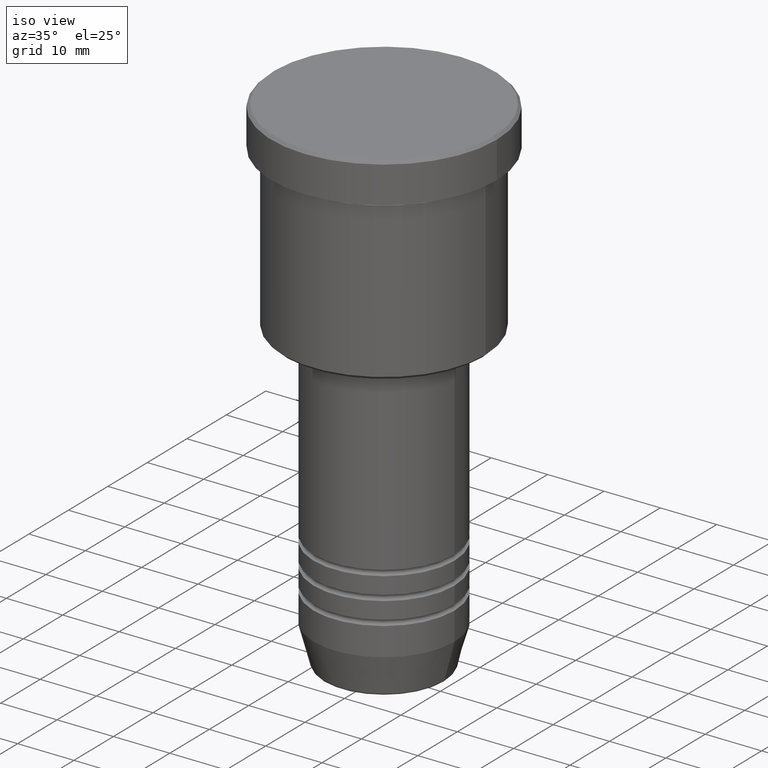
[diagram: clean part render]
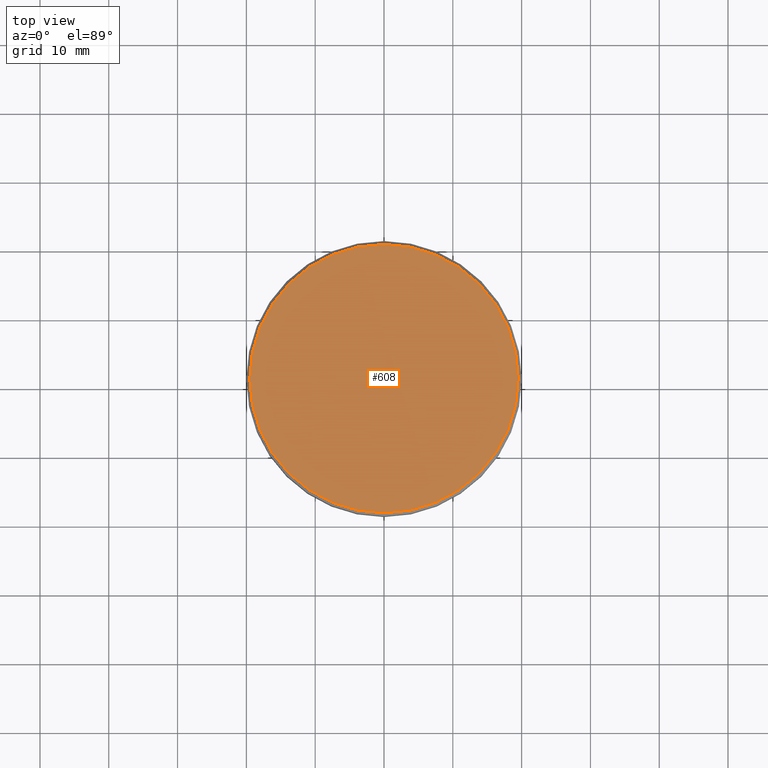
[diagram: tour spotlight — one face highlighted and labeled with its STEP entity id]
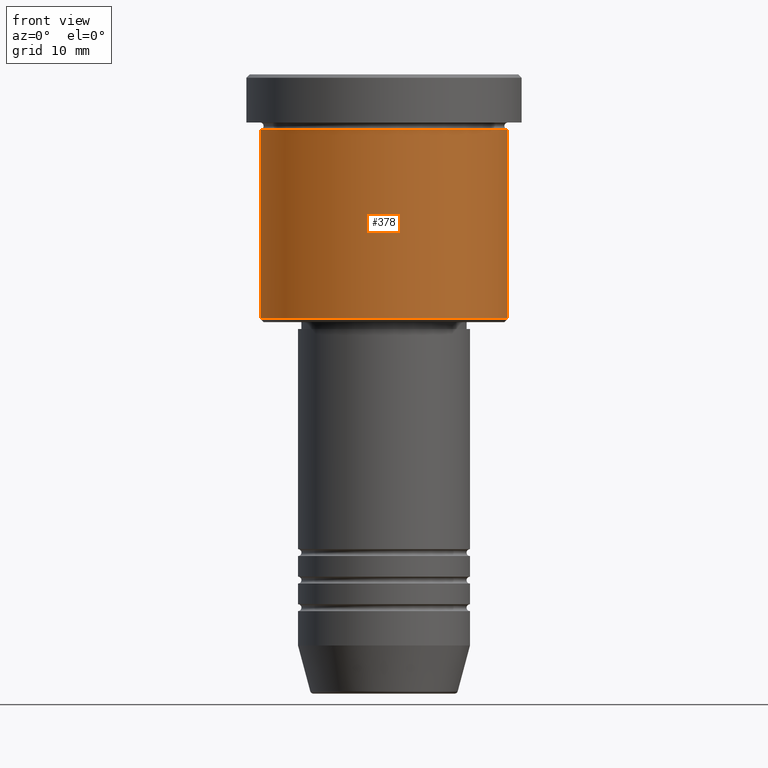
[diagram: tour spotlight — one face highlighted and labeled with its STEP entity id]
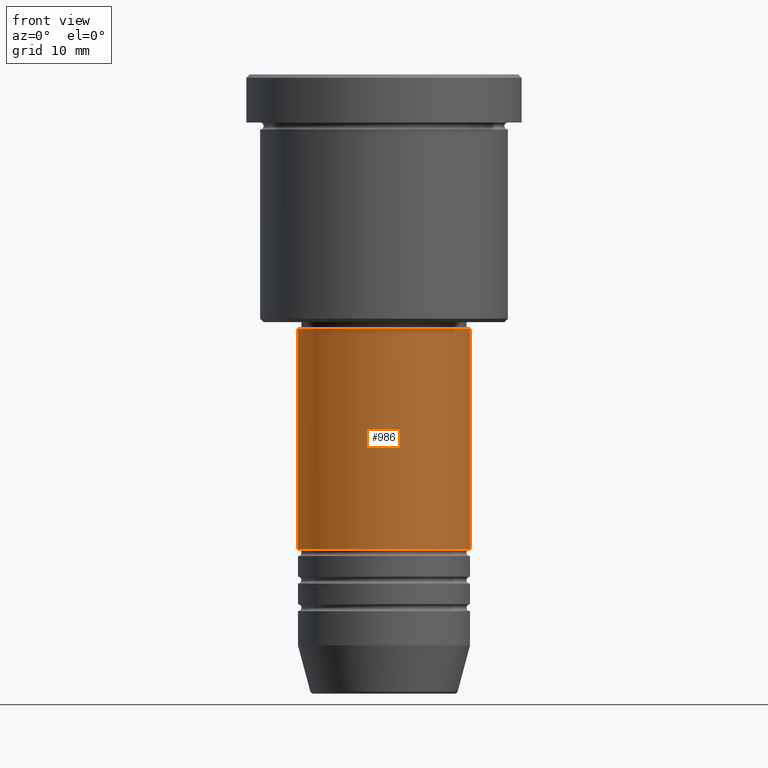
[diagram: tour spotlight — one face highlighted and labeled with its STEP entity id]
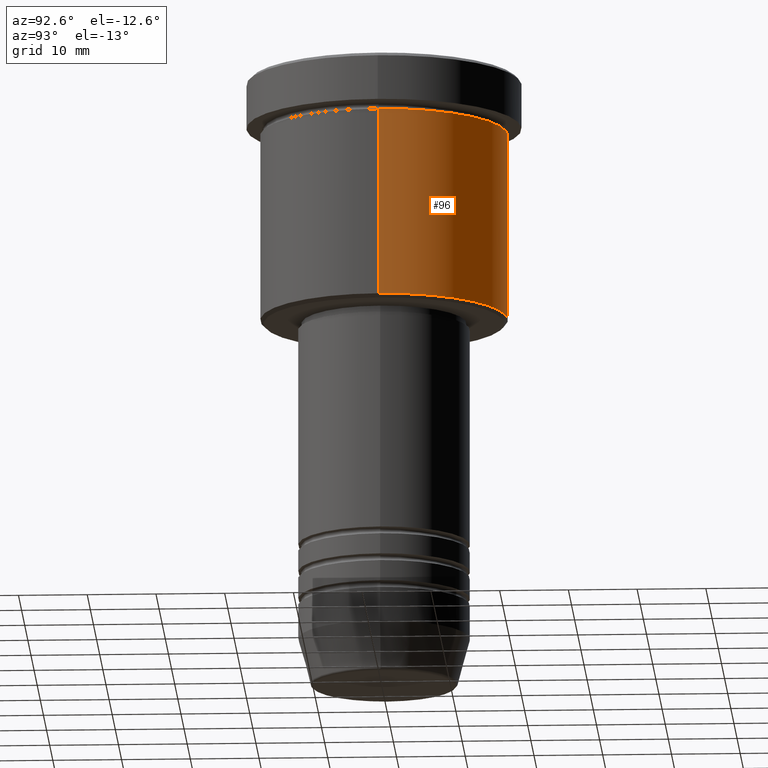
[diagram: tour spotlight — one face highlighted and labeled with its STEP entity id]
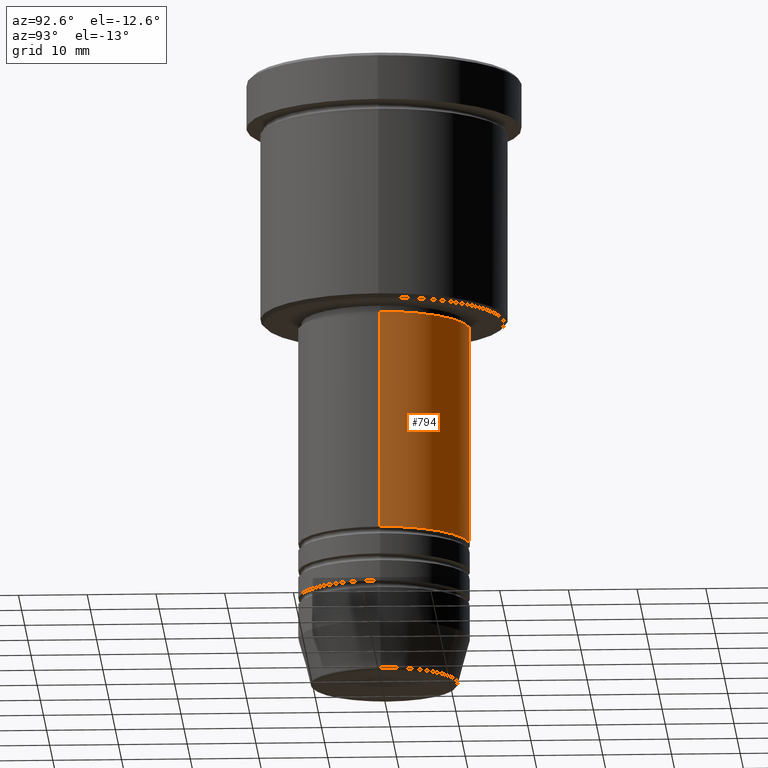
[diagram: tour spotlight — one face highlighted and labeled with its STEP entity id]
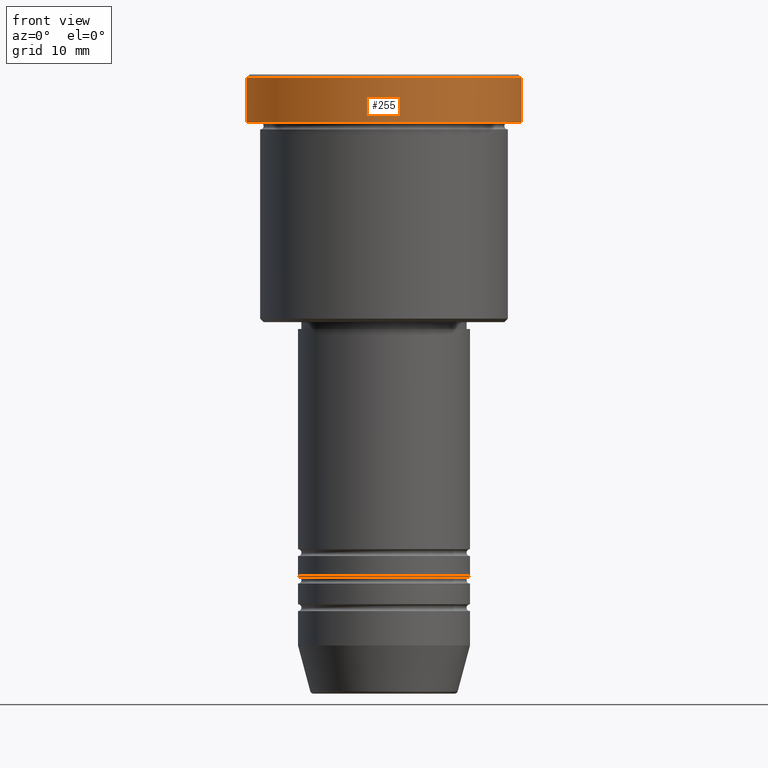
[diagram: tour spotlight — one face highlighted and labeled with its STEP entity id]
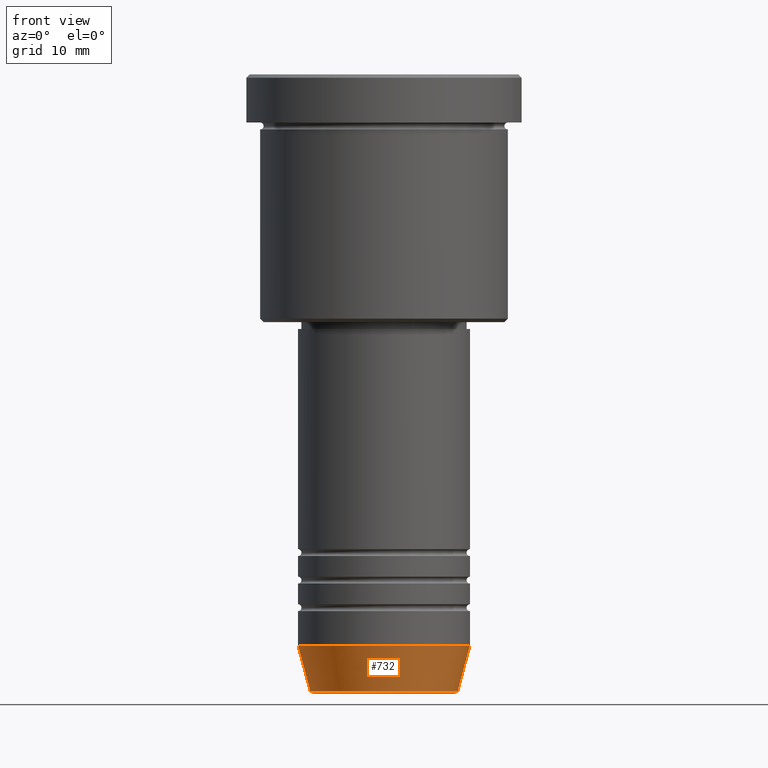
[diagram: tour spotlight — one face highlighted and labeled with its STEP entity id]
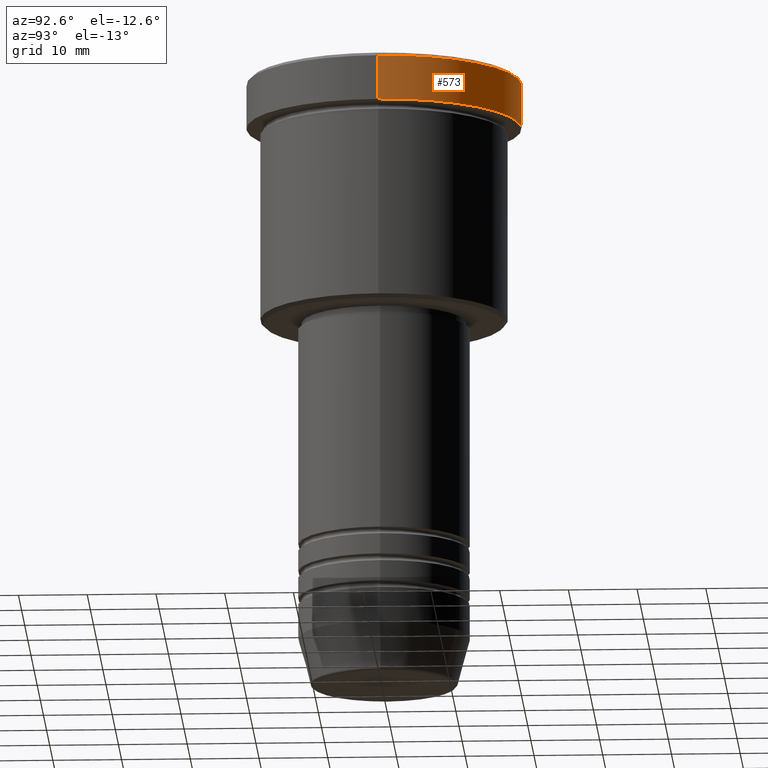
[diagram: tour spotlight — one face highlighted and labeled with its STEP entity id]
A machine part: a face-by-face anatomy tour. The part has 43 B-rep faces; the first image is the clean iso view, then the 8 largest visible faces are spotlighted one at a time (largest first), each with its STEP entity span.

Face 1 — top view, entity #608. In plain terms, the highlighted planar face has unit normal (0, -0, 1).
Definition (entity closure, byte-faithful):
#47 = CARTESIAN_POINT ( 'NONE',  ( 19.50000000000001776, 2.418677428316023515E-15, 0.000000000000000000 ) ) ;
#50 = DIRECTION ( 'NONE',  ( 0.000000000000000000, -0.000000000000000000, 1.000000000000000000 ) ) ;
#58 = CARTESIAN_POINT ( 'NONE',  ( 0.000000000000000000, 0.000000000000000000, 0.000000000000000000 ) ) ;
#82 = VERTEX_POINT ( 'NONE', #47 ) ;
#90 = AXIS2_PLACEMENT_3D ( 'NONE', #769, #305, #952 ) ;
#155 = EDGE_CURVE ( 'NONE', #82, #1159, #803, .T. ) ;
#238 = DIRECTION ( 'NONE',  ( 1.000000000000000000, 0.000000000000000000, 0.000000000000000000 ) ) ;
#305 = DIRECTION ( 'NONE',  ( -0.000000000000000000, -0.000000000000000000, 1.000000000000000000 ) ) ;
#306 = AXIS2_PLACEMENT_3D ( 'NONE', #452, #1090, #1108 ) ;
#309 = PLANE ( 'NONE',  #391 ) ;
#386 = CARTESIAN_POINT ( 'NONE',  ( -19.50000000000001776, 0.000000000000000000, 0.000000000000000000 ) ) ;
#391 = AXIS2_PLACEMENT_3D ( 'NONE', #58, #50, #238 ) ;
#445 = CIRCLE ( 'NONE', #306, 19.50000000000001776 ) ;
#452 = CARTESIAN_POINT ( 'NONE',  ( 0.000000000000000000, 0.000000000000000000, 0.000000000000000000 ) ) ;
#454 = EDGE_CURVE ( 'NONE', #1159, #82, #445, .T. ) ;
#608 = ADVANCED_FACE ( 'NONE', ( #1042 ), #309, .T. ) ;
#610 = ORIENTED_EDGE ( 'NONE', *, *, #454, .T. ) ;
#769 = CARTESIAN_POINT ( 'NONE',  ( 0.000000000000000000, 0.000000000000000000, 0.000000000000000000 ) ) ;
#803 = CIRCLE ( 'NONE', #90, 19.50000000000001776 ) ;
#844 = EDGE_LOOP ( 'NONE', ( #610, #906 ) ) ;
#906 = ORIENTED_EDGE ( 'NONE', *, *, #155, .T. ) ;
#952 = DIRECTION ( 'NONE',  ( 1.000000000000000000, 0.000000000000000000, 0.000000000000000000 ) ) ;
#1042 = FACE_OUTER_BOUND ( 'NONE', #844, .T. ) ;
#1090 = DIRECTION ( 'NONE',  ( -0.000000000000000000, -0.000000000000000000, 1.000000000000000000 ) ) ;
#1108 = DIRECTION ( 'NONE',  ( 1.000000000000000000, 0.000000000000000000, 0.000000000000000000 ) ) ;
#1159 = VERTEX_POINT ( 'NONE', #386 ) ;

Face 2 — front view, entity #378. In plain terms, the highlighted cylindrical surface (partial cylindrical patch) has radius 18 mm, axis along (-0, -0, 1).
Definition (entity closure, byte-faithful):
#4 = AXIS2_PLACEMENT_3D ( 'NONE', #938, #593, #575 ) ;
#25 = AXIS2_PLACEMENT_3D ( 'NONE', #156, #219, #472 ) ;
#114 = EDGE_LOOP ( 'NONE', ( #1164, #546, #632, #978 ) ) ;
#156 = CARTESIAN_POINT ( 'NONE',  ( 0.000000000000000000, 0.000000000000000000, -35.49999999999997158 ) ) ;
#171 = VECTOR ( 'NONE', #349, 1000.000000000000000 ) ;
#179 = LINE ( 'NONE', #605, #171 ) ;
#192 = VERTEX_POINT ( 'NONE', #379 ) ;
#219 = DIRECTION ( 'NONE',  ( -0.000000000000000000, -0.000000000000000000, 1.000000000000000000 ) ) ;
#279 = EDGE_CURVE ( 'NONE', #900, #649, #626, .T. ) ;
#349 = DIRECTION ( 'NONE',  ( -0.000000000000000000, -0.000000000000000000, 1.000000000000000000 ) ) ;
#378 = ADVANCED_FACE ( 'NONE', ( #815 ), #1181, .T. ) ;
#379 = CARTESIAN_POINT ( 'NONE',  ( -18.00000000000000000, 2.204364238465235428E-15, -35.49999999999997158 ) ) ;
#472 = DIRECTION ( 'NONE',  ( -1.000000000000000000, 0.000000000000000000, 0.000000000000000000 ) ) ;
#473 = CARTESIAN_POINT ( 'NONE',  ( -18.00000000000000000, 2.204364238465235428E-15, 0.000000000000000000 ) ) ;
#487 = EDGE_CURVE ( 'NONE', #192, #880, #744, .T. ) ;
#497 = CARTESIAN_POINT ( 'NONE',  ( 18.00000000000000000, 0.000000000000000000, -7.999999999999996447 ) ) ;
#500 = LINE ( 'NONE', #473, #942 ) ;
#546 = ORIENTED_EDGE ( 'NONE', *, *, #487, .T. ) ;
#552 = DIRECTION ( 'NONE',  ( 1.000000000000000000, 0.000000000000000000, 0.000000000000000000 ) ) ;
#575 = DIRECTION ( 'NONE',  ( 1.000000000000000000, 0.000000000000000000, 0.000000000000000000 ) ) ;
#593 = DIRECTION ( 'NONE',  ( -0.000000000000000000, -0.000000000000000000, 1.000000000000000000 ) ) ;
#601 = CARTESIAN_POINT ( 'NONE',  ( 18.00000000000000000, 0.000000000000000000, -35.49999999999997158 ) ) ;
#605 = CARTESIAN_POINT ( 'NONE',  ( 18.00000000000000000, 0.000000000000000000, 0.000000000000000000 ) ) ;
#626 = CIRCLE ( 'NONE', #4, 18.00000000000000000 ) ;
#632 = ORIENTED_EDGE ( 'NONE', *, *, #768, .T. ) ;
#649 = VERTEX_POINT ( 'NONE', #497 ) ;
#744 = CIRCLE ( 'NONE', #25, 18.00000000000000000 ) ;
#768 = EDGE_CURVE ( 'NONE', #880, #649, #179, .T. ) ;
#815 = FACE_OUTER_BOUND ( 'NONE', #114, .T. ) ;
#880 = VERTEX_POINT ( 'NONE', #601 ) ;
#900 = VERTEX_POINT ( 'NONE', #919 ) ;
#919 = CARTESIAN_POINT ( 'NONE',  ( -18.00000000000000000, 2.204364238465235428E-15, -7.999999999999996447 ) ) ;
#938 = CARTESIAN_POINT ( 'NONE',  ( 0.000000000000000000, 0.000000000000000000, -7.999999999999996447 ) ) ;
#942 = VECTOR ( 'NONE', #1018, 1000.000000000000000 ) ;
#978 = ORIENTED_EDGE ( 'NONE', *, *, #279, .F. ) ;
#998 = AXIS2_PLACEMENT_3D ( 'NONE', #1021, #1010, #552 ) ;
#1010 = DIRECTION ( 'NONE',  ( -0.000000000000000000, -0.000000000000000000, 1.000000000000000000 ) ) ;
#1018 = DIRECTION ( 'NONE',  ( -0.000000000000000000, -0.000000000000000000, 1.000000000000000000 ) ) ;
#1021 = CARTESIAN_POINT ( 'NONE',  ( 0.000000000000000000, 0.000000000000000000, 0.000000000000000000 ) ) ;
#1046 = EDGE_CURVE ( 'NONE', #192, #900, #500, .T. ) ;
#1164 = ORIENTED_EDGE ( 'NONE', *, *, #1046, .F. ) ;
#1181 = CYLINDRICAL_SURFACE ( 'NONE', #998, 18.00000000000000000 ) ;

Face 3 — front view, entity #986. In plain terms, the highlighted cylindrical surface (partial cylindrical patch) has radius 12.5 mm, axis along (-0, -0, 1).
Definition (entity closure, byte-faithful):
#1 = AXIS2_PLACEMENT_3D ( 'NONE', #291, #469, #635 ) ;
#5 = EDGE_LOOP ( 'NONE', ( #957, #175, #910, #1126 ) ) ;
#11 = LINE ( 'NONE', #382, #842 ) ;
#125 = AXIS2_PLACEMENT_3D ( 'NONE', #693, #1064, #894 ) ;
#130 = CARTESIAN_POINT ( 'NONE',  ( -12.50000000000000000, 1.530808498934191521E-15, -68.99999999999997158 ) ) ;
#142 = CARTESIAN_POINT ( 'NONE',  ( -12.50000000000000000, 1.530808498934191521E-15, 0.000000000000000000 ) ) ;
#175 = ORIENTED_EDGE ( 'NONE', *, *, #860, .T. ) ;
#183 = DIRECTION ( 'NONE',  ( 1.000000000000000000, 0.000000000000000000, 0.000000000000000000 ) ) ;
#228 = CARTESIAN_POINT ( 'NONE',  ( 12.50000000000000000, 0.000000000000000000, -37.00000000000000711 ) ) ;
#291 = CARTESIAN_POINT ( 'NONE',  ( 0.000000000000000000, 0.000000000000000000, -37.00000000000000711 ) ) ;
#307 = DIRECTION ( 'NONE',  ( -0.000000000000000000, -0.000000000000000000, 1.000000000000000000 ) ) ;
#338 = CARTESIAN_POINT ( 'NONE',  ( -12.50000000000000000, 1.530808498934191521E-15, -37.00000000000000711 ) ) ;
#360 = CARTESIAN_POINT ( 'NONE',  ( 0.000000000000000000, 0.000000000000000000, 0.000000000000000000 ) ) ;
#363 = DIRECTION ( 'NONE',  ( -0.000000000000000000, -0.000000000000000000, 1.000000000000000000 ) ) ;
#382 = CARTESIAN_POINT ( 'NONE',  ( 12.50000000000000000, 0.000000000000000000, 0.000000000000000000 ) ) ;
#461 = FACE_OUTER_BOUND ( 'NONE', #5, .T. ) ;
#469 = DIRECTION ( 'NONE',  ( -0.000000000000000000, -0.000000000000000000, 1.000000000000000000 ) ) ;
#528 = VERTEX_POINT ( 'NONE', #338 ) ;
#635 = DIRECTION ( 'NONE',  ( 1.000000000000000000, 0.000000000000000000, 0.000000000000000000 ) ) ;
#639 = DIRECTION ( 'NONE',  ( -0.000000000000000000, -0.000000000000000000, 1.000000000000000000 ) ) ;
#675 = LINE ( 'NONE', #142, #861 ) ;
#693 = CARTESIAN_POINT ( 'NONE',  ( 0.000000000000000000, 0.000000000000000000, -68.99999999999997158 ) ) ;
#835 = CARTESIAN_POINT ( 'NONE',  ( 12.50000000000000000, 0.000000000000000000, -68.99999999999997158 ) ) ;
#842 = VECTOR ( 'NONE', #639, 1000.000000000000000 ) ;
#860 = EDGE_CURVE ( 'NONE', #1169, #1177, #996, .T. ) ;
#861 = VECTOR ( 'NONE', #307, 1000.000000000000000 ) ;
#883 = CIRCLE ( 'NONE', #1, 12.50000000000000000 ) ;
#888 = AXIS2_PLACEMENT_3D ( 'NONE', #360, #363, #183 ) ;
#894 = DIRECTION ( 'NONE',  ( 1.000000000000000000, 0.000000000000000000, 0.000000000000000000 ) ) ;
#909 = EDGE_CURVE ( 'NONE', #528, #1158, #883, .T. ) ;
#910 = ORIENTED_EDGE ( 'NONE', *, *, #923, .T. ) ;
#923 = EDGE_CURVE ( 'NONE', #1177, #1158, #11, .T. ) ;
#957 = ORIENTED_EDGE ( 'NONE', *, *, #1132, .F. ) ;
#986 = ADVANCED_FACE ( 'NONE', ( #461 ), #1175, .T. ) ;
#996 = CIRCLE ( 'NONE', #125, 12.50000000000000000 ) ;
#1064 = DIRECTION ( 'NONE',  ( -0.000000000000000000, -0.000000000000000000, 1.000000000000000000 ) ) ;
#1126 = ORIENTED_EDGE ( 'NONE', *, *, #909, .F. ) ;
#1132 = EDGE_CURVE ( 'NONE', #1169, #528, #675, .T. ) ;
#1158 = VERTEX_POINT ( 'NONE', #228 ) ;
#1169 = VERTEX_POINT ( 'NONE', #130 ) ;
#1175 = CYLINDRICAL_SURFACE ( 'NONE', #888, 12.50000000000000000 ) ;
#1177 = VERTEX_POINT ( 'NONE', #835 ) ;

Face 4 — auxiliary view, entity #96. In plain terms, the highlighted cylindrical surface (partial cylindrical patch) has radius 18 mm, axis along (-0, -0, 1).
Definition (entity closure, byte-faithful):
#96 = ADVANCED_FACE ( 'NONE', ( #1127 ), #936, .T. ) ;
#123 = EDGE_CURVE ( 'NONE', #649, #900, #1074, .T. ) ;
#126 = CARTESIAN_POINT ( 'NONE',  ( 0.000000000000000000, 0.000000000000000000, 0.000000000000000000 ) ) ;
#171 = VECTOR ( 'NONE', #349, 1000.000000000000000 ) ;
#179 = LINE ( 'NONE', #605, #171 ) ;
#192 = VERTEX_POINT ( 'NONE', #379 ) ;
#312 = EDGE_CURVE ( 'NONE', #880, #192, #413, .T. ) ;
#347 = CARTESIAN_POINT ( 'NONE',  ( 0.000000000000000000, 0.000000000000000000, -35.49999999999997158 ) ) ;
#349 = DIRECTION ( 'NONE',  ( -0.000000000000000000, -0.000000000000000000, 1.000000000000000000 ) ) ;
#379 = CARTESIAN_POINT ( 'NONE',  ( -18.00000000000000000, 2.204364238465235428E-15, -35.49999999999997158 ) ) ;
#392 = DIRECTION ( 'NONE',  ( 1.000000000000000000, 0.000000000000000000, 0.000000000000000000 ) ) ;
#404 = DIRECTION ( 'NONE',  ( -0.000000000000000000, -0.000000000000000000, 1.000000000000000000 ) ) ;
#413 = CIRCLE ( 'NONE', #443, 18.00000000000000000 ) ;
#443 = AXIS2_PLACEMENT_3D ( 'NONE', #347, #620, #728 ) ;
#458 = ORIENTED_EDGE ( 'NONE', *, *, #123, .F. ) ;
#473 = CARTESIAN_POINT ( 'NONE',  ( -18.00000000000000000, 2.204364238465235428E-15, 0.000000000000000000 ) ) ;
#497 = CARTESIAN_POINT ( 'NONE',  ( 18.00000000000000000, 0.000000000000000000, -7.999999999999996447 ) ) ;
#500 = LINE ( 'NONE', #473, #942 ) ;
#505 = DIRECTION ( 'NONE',  ( -0.000000000000000000, -0.000000000000000000, 1.000000000000000000 ) ) ;
#506 = AXIS2_PLACEMENT_3D ( 'NONE', #126, #505, #392 ) ;
#550 = AXIS2_PLACEMENT_3D ( 'NONE', #668, #404, #1039 ) ;
#601 = CARTESIAN_POINT ( 'NONE',  ( 18.00000000000000000, 0.000000000000000000, -35.49999999999997158 ) ) ;
#605 = CARTESIAN_POINT ( 'NONE',  ( 18.00000000000000000, 0.000000000000000000, 0.000000000000000000 ) ) ;
#620 = DIRECTION ( 'NONE',  ( -0.000000000000000000, -0.000000000000000000, 1.000000000000000000 ) ) ;
#649 = VERTEX_POINT ( 'NONE', #497 ) ;
#668 = CARTESIAN_POINT ( 'NONE',  ( 0.000000000000000000, 0.000000000000000000, -7.999999999999996447 ) ) ;
#728 = DIRECTION ( 'NONE',  ( -1.000000000000000000, 0.000000000000000000, 0.000000000000000000 ) ) ;
#768 = EDGE_CURVE ( 'NONE', #880, #649, #179, .T. ) ;
#790 = ORIENTED_EDGE ( 'NONE', *, *, #312, .T. ) ;
#808 = ORIENTED_EDGE ( 'NONE', *, *, #1046, .T. ) ;
#880 = VERTEX_POINT ( 'NONE', #601 ) ;
#900 = VERTEX_POINT ( 'NONE', #919 ) ;
#919 = CARTESIAN_POINT ( 'NONE',  ( -18.00000000000000000, 2.204364238465235428E-15, -7.999999999999996447 ) ) ;
#936 = CYLINDRICAL_SURFACE ( 'NONE', #506, 18.00000000000000000 ) ;
#942 = VECTOR ( 'NONE', #1018, 1000.000000000000000 ) ;
#966 = ORIENTED_EDGE ( 'NONE', *, *, #768, .F. ) ;
#1018 = DIRECTION ( 'NONE',  ( -0.000000000000000000, -0.000000000000000000, 1.000000000000000000 ) ) ;
#1035 = EDGE_LOOP ( 'NONE', ( #790, #808, #458, #966 ) ) ;
#1039 = DIRECTION ( 'NONE',  ( 1.000000000000000000, 0.000000000000000000, 0.000000000000000000 ) ) ;
#1046 = EDGE_CURVE ( 'NONE', #192, #900, #500, .T. ) ;
#1074 = CIRCLE ( 'NONE', #550, 18.00000000000000000 ) ;
#1127 = FACE_OUTER_BOUND ( 'NONE', #1035, .T. ) ;

Face 5 — auxiliary view, entity #794. In plain terms, the highlighted cylindrical surface (partial cylindrical patch) has radius 12.5 mm, axis along (-0, -0, 1).
Definition (entity closure, byte-faithful):
#11 = LINE ( 'NONE', #382, #842 ) ;
#21 = AXIS2_PLACEMENT_3D ( 'NONE', #438, #1151, #262 ) ;
#36 = DIRECTION ( 'NONE',  ( 1.000000000000000000, 0.000000000000000000, 0.000000000000000000 ) ) ;
#112 = DIRECTION ( 'NONE',  ( -0.000000000000000000, -0.000000000000000000, 1.000000000000000000 ) ) ;
#124 = ORIENTED_EDGE ( 'NONE', *, *, #923, .F. ) ;
#130 = CARTESIAN_POINT ( 'NONE',  ( -12.50000000000000000, 1.530808498934191521E-15, -68.99999999999997158 ) ) ;
#142 = CARTESIAN_POINT ( 'NONE',  ( -12.50000000000000000, 1.530808498934191521E-15, 0.000000000000000000 ) ) ;
#154 = CARTESIAN_POINT ( 'NONE',  ( 0.000000000000000000, 0.000000000000000000, -37.00000000000000711 ) ) ;
#185 = ORIENTED_EDGE ( 'NONE', *, *, #237, .T. ) ;
#228 = CARTESIAN_POINT ( 'NONE',  ( 12.50000000000000000, 0.000000000000000000, -37.00000000000000711 ) ) ;
#237 = EDGE_CURVE ( 'NONE', #1177, #1169, #705, .T. ) ;
#262 = DIRECTION ( 'NONE',  ( 1.000000000000000000, 0.000000000000000000, 0.000000000000000000 ) ) ;
#265 = AXIS2_PLACEMENT_3D ( 'NONE', #555, #112, #655 ) ;
#304 = ORIENTED_EDGE ( 'NONE', *, *, #543, .F. ) ;
#307 = DIRECTION ( 'NONE',  ( -0.000000000000000000, -0.000000000000000000, 1.000000000000000000 ) ) ;
#338 = CARTESIAN_POINT ( 'NONE',  ( -12.50000000000000000, 1.530808498934191521E-15, -37.00000000000000711 ) ) ;
#382 = CARTESIAN_POINT ( 'NONE',  ( 12.50000000000000000, 0.000000000000000000, 0.000000000000000000 ) ) ;
#435 = CYLINDRICAL_SURFACE ( 'NONE', #21, 12.50000000000000000 ) ;
#438 = CARTESIAN_POINT ( 'NONE',  ( 0.000000000000000000, 0.000000000000000000, 0.000000000000000000 ) ) ;
#520 = ORIENTED_EDGE ( 'NONE', *, *, #1132, .T. ) ;
#528 = VERTEX_POINT ( 'NONE', #338 ) ;
#543 = EDGE_CURVE ( 'NONE', #1158, #528, #905, .T. ) ;
#555 = CARTESIAN_POINT ( 'NONE',  ( 0.000000000000000000, 0.000000000000000000, -68.99999999999997158 ) ) ;
#563 = DIRECTION ( 'NONE',  ( -0.000000000000000000, -0.000000000000000000, 1.000000000000000000 ) ) ;
#618 = FACE_OUTER_BOUND ( 'NONE', #1058, .T. ) ;
#639 = DIRECTION ( 'NONE',  ( -0.000000000000000000, -0.000000000000000000, 1.000000000000000000 ) ) ;
#655 = DIRECTION ( 'NONE',  ( 1.000000000000000000, 0.000000000000000000, 0.000000000000000000 ) ) ;
#675 = LINE ( 'NONE', #142, #861 ) ;
#705 = CIRCLE ( 'NONE', #265, 12.50000000000000000 ) ;
#794 = ADVANCED_FACE ( 'NONE', ( #618 ), #435, .T. ) ;
#835 = CARTESIAN_POINT ( 'NONE',  ( 12.50000000000000000, 0.000000000000000000, -68.99999999999997158 ) ) ;
#842 = VECTOR ( 'NONE', #639, 1000.000000000000000 ) ;
#861 = VECTOR ( 'NONE', #307, 1000.000000000000000 ) ;
#903 = AXIS2_PLACEMENT_3D ( 'NONE', #154, #563, #36 ) ;
#905 = CIRCLE ( 'NONE', #903, 12.50000000000000000 ) ;
#923 = EDGE_CURVE ( 'NONE', #1177, #1158, #11, .T. ) ;
#1058 = EDGE_LOOP ( 'NONE', ( #185, #520, #304, #124 ) ) ;
#1132 = EDGE_CURVE ( 'NONE', #1169, #528, #675, .T. ) ;
#1151 = DIRECTION ( 'NONE',  ( -0.000000000000000000, -0.000000000000000000, 1.000000000000000000 ) ) ;
#1158 = VERTEX_POINT ( 'NONE', #228 ) ;
#1169 = VERTEX_POINT ( 'NONE', #130 ) ;
#1177 = VERTEX_POINT ( 'NONE', #835 ) ;

Face 6 — front view, entity #255. In plain terms, the highlighted cylindrical surface (partial cylindrical patch) has radius 20 mm, axis along (-0, -0, 1).
Definition (entity closure, byte-faithful):
#24 = CARTESIAN_POINT ( 'NONE',  ( 0.000000000000000000, 0.000000000000000000, 0.000000000000000000 ) ) ;
#39 = DIRECTION ( 'NONE',  ( 1.000000000000000000, 0.000000000000000000, 0.000000000000000000 ) ) ;
#113 = EDGE_CURVE ( 'NONE', #660, #884, #242, .T. ) ;
#117 = CARTESIAN_POINT ( 'NONE',  ( -20.00000000000000000, 2.449293598294706513E-15, 0.000000000000000000 ) ) ;
#131 = DIRECTION ( 'NONE',  ( 1.000000000000000000, 0.000000000000000000, 0.000000000000000000 ) ) ;
#153 = AXIS2_PLACEMENT_3D ( 'NONE', #931, #850, #39 ) ;
#218 = CARTESIAN_POINT ( 'NONE',  ( 0.000000000000000000, 0.000000000000000000, -0.4999999999999831246 ) ) ;
#242 = CIRCLE ( 'NONE', #153, 20.00000000000000000 ) ;
#255 = ADVANCED_FACE ( 'NONE', ( #738 ), #1116, .T. ) ;
#387 = VERTEX_POINT ( 'NONE', #929 ) ;
#395 = LINE ( 'NONE', #858, #549 ) ;
#401 = VERTEX_POINT ( 'NONE', #659 ) ;
#427 = VECTOR ( 'NONE', #1128, 1000.000000000000000 ) ;
#549 = VECTOR ( 'NONE', #1040, 1000.000000000000000 ) ;
#560 = DIRECTION ( 'NONE',  ( -0.000000000000000000, -0.000000000000000000, 1.000000000000000000 ) ) ;
#588 = ORIENTED_EDGE ( 'NONE', *, *, #1082, .F. ) ;
#627 = AXIS2_PLACEMENT_3D ( 'NONE', #218, #849, #859 ) ;
#659 = CARTESIAN_POINT ( 'NONE',  ( -20.00000000000000000, 2.449293598294706513E-15, -0.4999999999999831246 ) ) ;
#660 = VERTEX_POINT ( 'NONE', #955 ) ;
#665 = EDGE_CURVE ( 'NONE', #387, #401, #1156, .T. ) ;
#723 = AXIS2_PLACEMENT_3D ( 'NONE', #24, #560, #131 ) ;
#729 = ORIENTED_EDGE ( 'NONE', *, *, #113, .T. ) ;
#738 = FACE_OUTER_BOUND ( 'NONE', #810, .T. ) ;
#752 = LINE ( 'NONE', #117, #427 ) ;
#778 = ORIENTED_EDGE ( 'NONE', *, *, #665, .T. ) ;
#810 = EDGE_LOOP ( 'NONE', ( #588, #729, #1009, #778 ) ) ;
#849 = DIRECTION ( 'NONE',  ( 0.000000000000000000, 0.000000000000000000, -1.000000000000000000 ) ) ;
#850 = DIRECTION ( 'NONE',  ( -0.000000000000000000, -0.000000000000000000, 1.000000000000000000 ) ) ;
#858 = CARTESIAN_POINT ( 'NONE',  ( 20.00000000000000000, 0.000000000000000000, 0.000000000000000000 ) ) ;
#859 = DIRECTION ( 'NONE',  ( 1.000000000000000000, 0.000000000000000000, 0.000000000000000000 ) ) ;
#884 = VERTEX_POINT ( 'NONE', #1107 ) ;
#929 = CARTESIAN_POINT ( 'NONE',  ( 20.00000000000000000, 0.000000000000000000, -0.4999999999999831246 ) ) ;
#931 = CARTESIAN_POINT ( 'NONE',  ( 0.000000000000000000, 0.000000000000000000, -6.999999999999995559 ) ) ;
#955 = CARTESIAN_POINT ( 'NONE',  ( -20.00000000000000000, 2.449293598294706513E-15, -6.999999999999995559 ) ) ;
#1009 = ORIENTED_EDGE ( 'NONE', *, *, #1075, .T. ) ;
#1040 = DIRECTION ( 'NONE',  ( -0.000000000000000000, -0.000000000000000000, 1.000000000000000000 ) ) ;
#1075 = EDGE_CURVE ( 'NONE', #884, #387, #395, .T. ) ;
#1082 = EDGE_CURVE ( 'NONE', #660, #401, #752, .T. ) ;
#1107 = CARTESIAN_POINT ( 'NONE',  ( 20.00000000000000000, 0.000000000000000000, -6.999999999999995559 ) ) ;
#1116 = CYLINDRICAL_SURFACE ( 'NONE', #723, 20.00000000000000000 ) ;
#1128 = DIRECTION ( 'NONE',  ( -0.000000000000000000, -0.000000000000000000, 1.000000000000000000 ) ) ;
#1156 = CIRCLE ( 'NONE', #627, 20.00000000000000000 ) ;

Face 7 — front view, entity #732. In plain terms, the highlighted conical surface has half-angle 15 deg.
Definition (entity closure, byte-faithful):
#10 = CARTESIAN_POINT ( 'NONE',  ( -10.72365507213718416, 1.422038742429749727E-15, -89.62940952255125637 ) ) ;
#48 = CARTESIAN_POINT ( 'NONE',  ( 0.000000000000000000, 0.000000000000000000, -82.99999999999998579 ) ) ;
#51 = CIRCLE ( 'NONE', #204, 10.72365507213718416 ) ;
#56 = CARTESIAN_POINT ( 'NONE',  ( 12.50000000000000000, 0.000000000000000000, -82.99999999999998579 ) ) ;
#62 = DIRECTION ( 'NONE',  ( -0.000000000000000000, -0.000000000000000000, 1.000000000000000000 ) ) ;
#80 = FACE_OUTER_BOUND ( 'NONE', #380, .T. ) ;
#93 = ORIENTED_EDGE ( 'NONE', *, *, #1006, .F. ) ;
#111 = CARTESIAN_POINT ( 'NONE',  ( 12.50000000000000000, 0.000000000000000000, -82.99999999999998579 ) ) ;
#138 = EDGE_CURVE ( 'NONE', #989, #973, #1139, .T. ) ;
#166 = CARTESIAN_POINT ( 'NONE',  ( 0.000000000000000000, 0.000000000000000000, -82.99999999999998579 ) ) ;
#186 = AXIS2_PLACEMENT_3D ( 'NONE', #166, #793, #1162 ) ;
#202 = AXIS2_PLACEMENT_3D ( 'NONE', #48, #1124, #854 ) ;
#204 = AXIS2_PLACEMENT_3D ( 'NONE', #512, #62, #774 ) ;
#205 = ORIENTED_EDGE ( 'NONE', *, *, #293, .T. ) ;
#274 = CARTESIAN_POINT ( 'NONE',  ( 10.72365507213718416, 0.000000000000000000, -89.62940952255125637 ) ) ;
#293 = EDGE_CURVE ( 'NONE', #361, #989, #51, .T. ) ;
#361 = VERTEX_POINT ( 'NONE', #10 ) ;
#376 = VECTOR ( 'NONE', #809, 1000.000000000000000 ) ;
#380 = EDGE_LOOP ( 'NONE', ( #93, #205, #1057, #863 ) ) ;
#394 = CONICAL_SURFACE ( 'NONE', #186, 12.50000000000000000, 0.2617993877991500740 ) ;
#449 = CARTESIAN_POINT ( 'NONE',  ( -12.50000000000000000, 1.530808498934191521E-15, -82.99999999999998579 ) ) ;
#489 = DIRECTION ( 'NONE',  ( 0.2588190451025213501, 0.000000000000000000, 0.9659258262890680902 ) ) ;
#512 = CARTESIAN_POINT ( 'NONE',  ( 0.000000000000000000, 0.000000000000000000, -89.62940952255125637 ) ) ;
#600 = VERTEX_POINT ( 'NONE', #757 ) ;
#732 = ADVANCED_FACE ( 'NONE', ( #80 ), #394, .T. ) ;
#757 = CARTESIAN_POINT ( 'NONE',  ( -12.50000000000000000, 1.530808498934191521E-15, -82.99999999999998579 ) ) ;
#774 = DIRECTION ( 'NONE',  ( 1.000000000000000000, 0.000000000000000000, 0.000000000000000000 ) ) ;
#793 = DIRECTION ( 'NONE',  ( -0.000000000000000000, -0.000000000000000000, 1.000000000000000000 ) ) ;
#809 = DIRECTION ( 'NONE',  ( -0.2588190451025213501, 3.169619151431772337E-17, 0.9659258262890680902 ) ) ;
#854 = DIRECTION ( 'NONE',  ( 1.000000000000000000, 0.000000000000000000, 0.000000000000000000 ) ) ;
#863 = ORIENTED_EDGE ( 'NONE', *, *, #1100, .F. ) ;
#973 = VERTEX_POINT ( 'NONE', #111 ) ;
#989 = VERTEX_POINT ( 'NONE', #274 ) ;
#993 = LINE ( 'NONE', #449, #376 ) ;
#1006 = EDGE_CURVE ( 'NONE', #361, #600, #993, .T. ) ;
#1057 = ORIENTED_EDGE ( 'NONE', *, *, #138, .T. ) ;
#1073 = CIRCLE ( 'NONE', #202, 12.50000000000000000 ) ;
#1100 = EDGE_CURVE ( 'NONE', #600, #973, #1073, .T. ) ;
#1124 = DIRECTION ( 'NONE',  ( -0.000000000000000000, -0.000000000000000000, 1.000000000000000000 ) ) ;
#1139 = LINE ( 'NONE', #56, #1173 ) ;
#1162 = DIRECTION ( 'NONE',  ( 1.000000000000000000, 0.000000000000000000, 0.000000000000000000 ) ) ;
#1173 = VECTOR ( 'NONE', #489, 1000.000000000000000 ) ;

Face 8 — auxiliary view, entity #573. In plain terms, the highlighted cylindrical surface (partial cylindrical patch) has radius 20 mm, axis along (-0, -0, 1).
Definition (entity closure, byte-faithful):
#49 = FACE_OUTER_BOUND ( 'NONE', #949, .T. ) ;
#87 = AXIS2_PLACEMENT_3D ( 'NONE', #653, #129, #151 ) ;
#117 = CARTESIAN_POINT ( 'NONE',  ( -20.00000000000000000, 2.449293598294706513E-15, 0.000000000000000000 ) ) ;
#129 = DIRECTION ( 'NONE',  ( 0.000000000000000000, 0.000000000000000000, -1.000000000000000000 ) ) ;
#151 = DIRECTION ( 'NONE',  ( 1.000000000000000000, 0.000000000000000000, 0.000000000000000000 ) ) ;
#195 = EDGE_CURVE ( 'NONE', #401, #387, #507, .T. ) ;
#198 = CYLINDRICAL_SURFACE ( 'NONE', #574, 20.00000000000000000 ) ;
#350 = ORIENTED_EDGE ( 'NONE', *, *, #1075, .F. ) ;
#387 = VERTEX_POINT ( 'NONE', #929 ) ;
#395 = LINE ( 'NONE', #858, #549 ) ;
#401 = VERTEX_POINT ( 'NONE', #659 ) ;
#407 = DIRECTION ( 'NONE',  ( 1.000000000000000000, 0.000000000000000000, 0.000000000000000000 ) ) ;
#427 = VECTOR ( 'NONE', #1128, 1000.000000000000000 ) ;
#448 = ORIENTED_EDGE ( 'NONE', *, *, #195, .T. ) ;
#507 = CIRCLE ( 'NONE', #87, 20.00000000000000000 ) ;
#510 = CARTESIAN_POINT ( 'NONE',  ( 0.000000000000000000, 0.000000000000000000, 0.000000000000000000 ) ) ;
#549 = VECTOR ( 'NONE', #1040, 1000.000000000000000 ) ;
#573 = ADVANCED_FACE ( 'NONE', ( #49 ), #198, .T. ) ;
#574 = AXIS2_PLACEMENT_3D ( 'NONE', #510, #671, #407 ) ;
#577 = DIRECTION ( 'NONE',  ( -0.000000000000000000, -0.000000000000000000, 1.000000000000000000 ) ) ;
#616 = ORIENTED_EDGE ( 'NONE', *, *, #1082, .T. ) ;
#617 = EDGE_CURVE ( 'NONE', #884, #660, #667, .T. ) ;
#653 = CARTESIAN_POINT ( 'NONE',  ( 0.000000000000000000, 0.000000000000000000, -0.4999999999999831246 ) ) ;
#659 = CARTESIAN_POINT ( 'NONE',  ( -20.00000000000000000, 2.449293598294706513E-15, -0.4999999999999831246 ) ) ;
#660 = VERTEX_POINT ( 'NONE', #955 ) ;
#667 = CIRCLE ( 'NONE', #724, 20.00000000000000000 ) ;
#671 = DIRECTION ( 'NONE',  ( -0.000000000000000000, -0.000000000000000000, 1.000000000000000000 ) ) ;
#724 = AXIS2_PLACEMENT_3D ( 'NONE', #1131, #577, #962 ) ;
#752 = LINE ( 'NONE', #117, #427 ) ;
#858 = CARTESIAN_POINT ( 'NONE',  ( 20.00000000000000000, 0.000000000000000000, 0.000000000000000000 ) ) ;
#884 = VERTEX_POINT ( 'NONE', #1107 ) ;
#914 = ORIENTED_EDGE ( 'NONE', *, *, #617, .T. ) ;
#929 = CARTESIAN_POINT ( 'NONE',  ( 20.00000000000000000, 0.000000000000000000, -0.4999999999999831246 ) ) ;
#949 = EDGE_LOOP ( 'NONE', ( #914, #616, #448, #350 ) ) ;
#955 = CARTESIAN_POINT ( 'NONE',  ( -20.00000000000000000, 2.449293598294706513E-15, -6.999999999999995559 ) ) ;
#962 = DIRECTION ( 'NONE',  ( 1.000000000000000000, 0.000000000000000000, 0.000000000000000000 ) ) ;
#1040 = DIRECTION ( 'NONE',  ( -0.000000000000000000, -0.000000000000000000, 1.000000000000000000 ) ) ;
#1075 = EDGE_CURVE ( 'NONE', #884, #387, #395, .T. ) ;
#1082 = EDGE_CURVE ( 'NONE', #660, #401, #752, .T. ) ;
#1107 = CARTESIAN_POINT ( 'NONE',  ( 20.00000000000000000, 0.000000000000000000, -6.999999999999995559 ) ) ;
#1128 = DIRECTION ( 'NONE',  ( -0.000000000000000000, -0.000000000000000000, 1.000000000000000000 ) ) ;
#1131 = CARTESIAN_POINT ( 'NONE',  ( 0.000000000000000000, 0.000000000000000000, -6.999999999999995559 ) ) ;